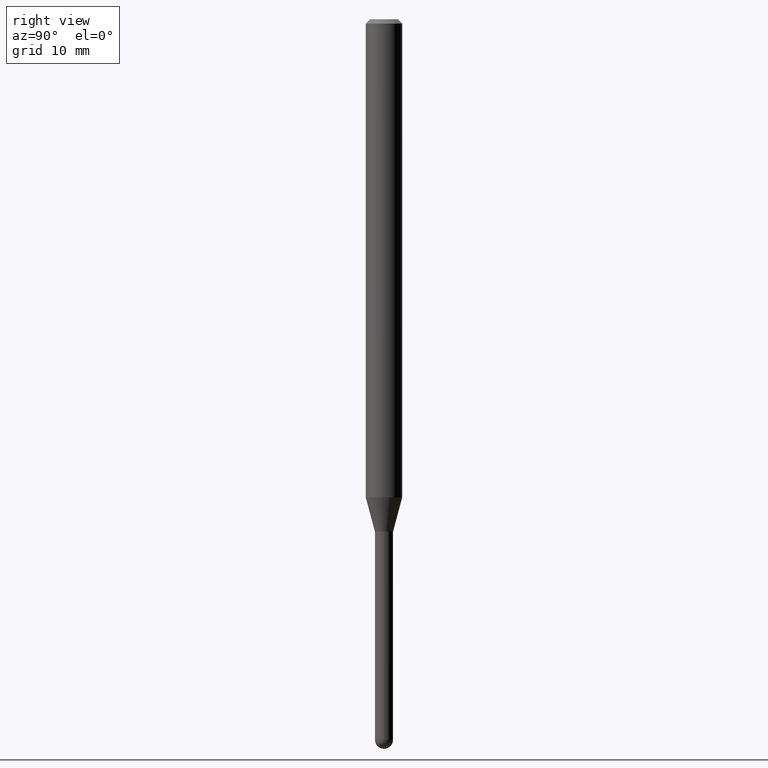
[diagram: clean part render]
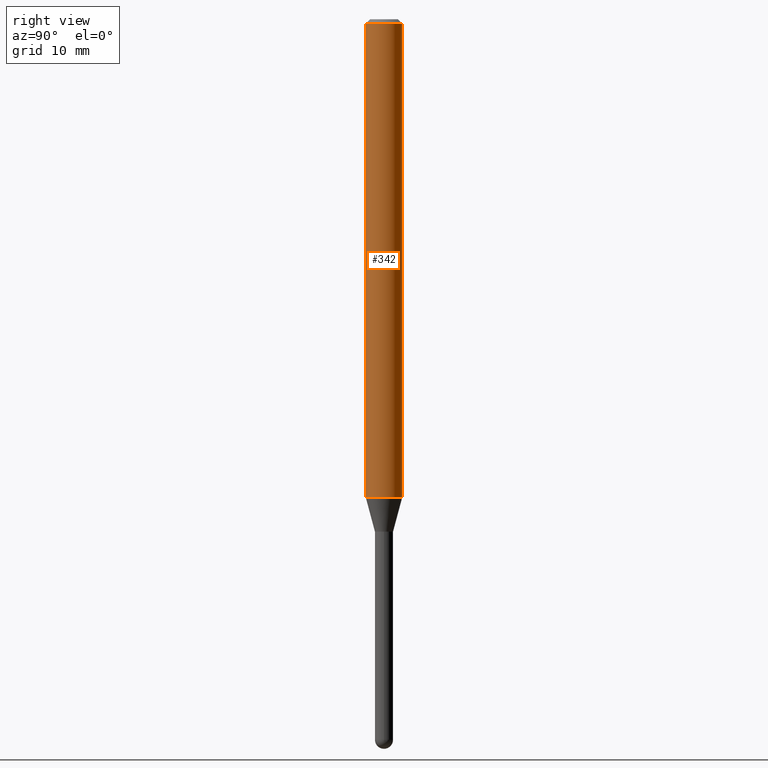
[diagram: same view with one face highlighted and labeled with its STEP entity id]
A machine part, right view. The second image highlights one B-rep face of the part: STEP entity #342.
In plain terms, the highlighted cylindrical surface (edge-blend (fillet) strip) has radius 1.5875 mm, axis along (-0, 0, 1).
Its self-contained STEP definition (entity closure, byte-faithful):
#20 = EDGE_LOOP ( 'NONE', ( #319, #265, #341, #419 ) ) ;
#34 = DIRECTION ( 'NONE',  ( -6.982962677686265922E-15, -1.000000000000000000, 3.483106191921935554E-15 ) ) ;
#48 = CARTESIAN_POINT ( 'NONE',  ( -4.364351673553912750E-16, -0.06250000000000005551, -0.01499999999999979128 ) ) ;
#70 = AXIS2_PLACEMENT_3D ( 'NONE', #231, #428, #34 ) ;
#84 = VERTEX_POINT ( 'NONE', #148 ) ;
#93 = EDGE_CURVE ( 'NONE', #99, #196, #313, .T. ) ;
#99 = VERTEX_POINT ( 'NONE', #315 ) ;
#119 = DIRECTION ( 'NONE',  ( -6.982962677686265922E-15, -1.000000000000000000, 4.370956789862821150E-15 ) ) ;
#128 = DIRECTION ( 'NONE',  ( -6.982962677686265922E-15, -1.000000000000000000, 3.491453896504738030E-15 ) ) ;
#135 = EDGE_CURVE ( 'NONE', #99, #463, #492, .T. ) ;
#140 = LINE ( 'NONE', #373, #281 ) ;
#148 = CARTESIAN_POINT ( 'NONE',  ( 4.440892098501028481E-16, 0.06249999999999995143, -0.01500000000000022669 ) ) ;
#158 = CARTESIAN_POINT ( 'NONE',  ( 4.006786285162205209E-29, -5.720539117240072131E-15, -1.638440399561583716 ) ) ;
#172 = CYLINDRICAL_SURFACE ( 'NONE', #348, 0.06250000000000000000 ) ;
#177 = CARTESIAN_POINT ( 'NONE',  ( 4.440892098501024536E-16, 0.06249999999999425460, -1.638440399561583938 ) ) ;
#196 = VERTEX_POINT ( 'NONE', #48 ) ;
#231 = CARTESIAN_POINT ( 'NONE',  ( 3.668231953601440230E-31, -5.237180844757110571E-17, -0.01500000000000000812 ) ) ;
#265 = ORIENTED_EDGE ( 'NONE', *, *, #446, .T. ) ;
#281 = VECTOR ( 'NONE', #487, 39.37007874015748143 ) ;
#313 = LINE ( 'NONE', #396, #404 ) ;
#314 = AXIS2_PLACEMENT_3D ( 'NONE', #158, #320, #119 ) ;
#315 = CARTESIAN_POINT ( 'NONE',  ( -4.364351673553516840E-16, -0.06250000000000574540, -1.638440399561583494 ) ) ;
#319 = ORIENTED_EDGE ( 'NONE', *, *, #135, .T. ) ;
#320 = DIRECTION ( 'NONE',  ( -2.445487969067625302E-29, 3.491453896504738030E-15, 1.000000000000000000 ) ) ;
#328 = CARTESIAN_POINT ( 'NONE',  ( 0.000000000000000000, 0.000000000000000000, 0.000000000000000000 ) ) ;
#341 = ORIENTED_EDGE ( 'NONE', *, *, #501, .F. ) ;
#342 = ADVANCED_FACE ( 'NONE', ( #399 ), #172, .T. ) ;
#348 = AXIS2_PLACEMENT_3D ( 'NONE', #328, #483, #128 ) ;
#373 = CARTESIAN_POINT ( 'NONE',  ( 4.440892098500625669E-16, 0.06250000000000000000, -2.182158685315461269E-16 ) ) ;
#396 = CARTESIAN_POINT ( 'NONE',  ( -4.364351673553916201E-16, -0.06250000000000000000, 2.182158685315461269E-16 ) ) ;
#399 = FACE_OUTER_BOUND ( 'NONE', #20, .T. ) ;
#404 = VECTOR ( 'NONE', #437, 39.37007874015748143 ) ;
#419 = ORIENTED_EDGE ( 'NONE', *, *, #93, .F. ) ;
#428 = DIRECTION ( 'NONE',  ( -2.445487969067625302E-29, 3.491453896504738030E-15, 1.000000000000000000 ) ) ;
#437 = DIRECTION ( 'NONE',  ( -2.445487969067625582E-29, 3.491453896504738030E-15, 1.000000000000000000 ) ) ;
#446 = EDGE_CURVE ( 'NONE', #463, #84, #140, .T. ) ;
#463 = VERTEX_POINT ( 'NONE', #177 ) ;
#483 = DIRECTION ( 'NONE',  ( -2.445487969067625302E-29, 3.491453896504738030E-15, 1.000000000000000000 ) ) ;
#487 = DIRECTION ( 'NONE',  ( -2.445487969067625582E-29, 3.491453896504738030E-15, 1.000000000000000000 ) ) ;
#492 = CIRCLE ( 'NONE', #314, 0.06250000000000000000 ) ;
#501 = EDGE_CURVE ( 'NONE', #196, #84, #511, .T. ) ;
#511 = CIRCLE ( 'NONE', #70, 0.06250000000000000000 ) ;